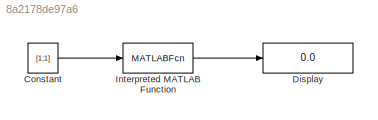
MODEL slx_8a2178de97a6
KIND model
CONFIG AbsTol = auto
CONFIG EnableMultiTasking = off
CONFIG FixedStep = auto
CONFIG MaxStep = auto
CONFIG MinStep = auto
CONFIG RelTol = 1e-3
CONFIG SampleTimeConstraint = Unconstrained
CONFIG Solver = VariableStepAuto
CONFIG SolverName = VariableStepAuto
CONFIG StartTime = 0.0
CONFIG StopTime = 10.0
BLOCK [Constant] Constant
  Value = [1;1]
BLOCK [Display] Display
  Decimation = 2
  Ports = [1]
BLOCK [MATLABFcn] Interpreted MATLAB Function
  MATLABFcn = funcCL([u(1), u(2)])
  OutputDimensions = 1
  Ports = [1, 1]
LINE Constant:1 -> Interpreted MATLAB Function:1
LINE Interpreted MATLAB Function:1 -> Display:1
